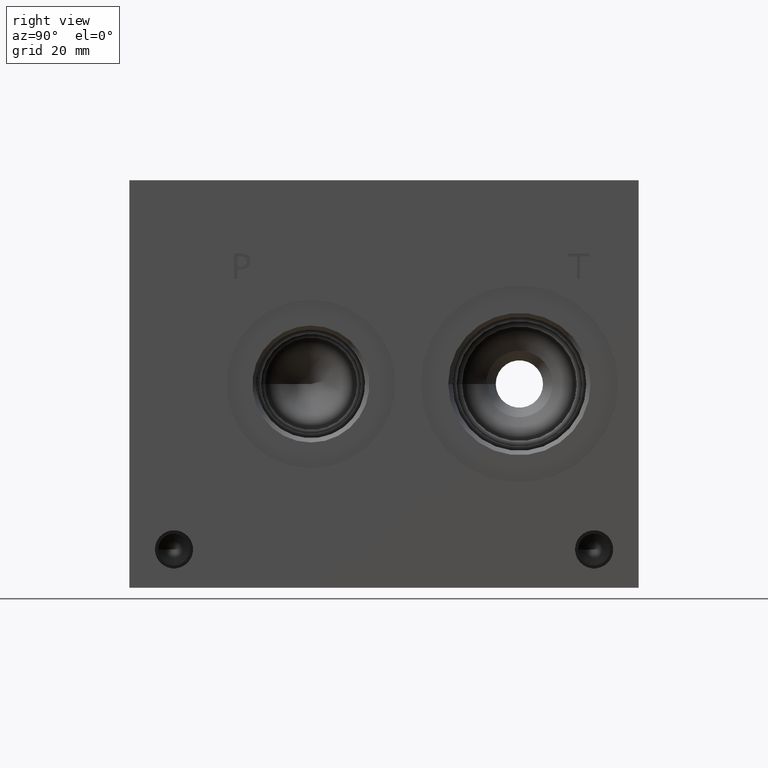
[diagram: clean part render]
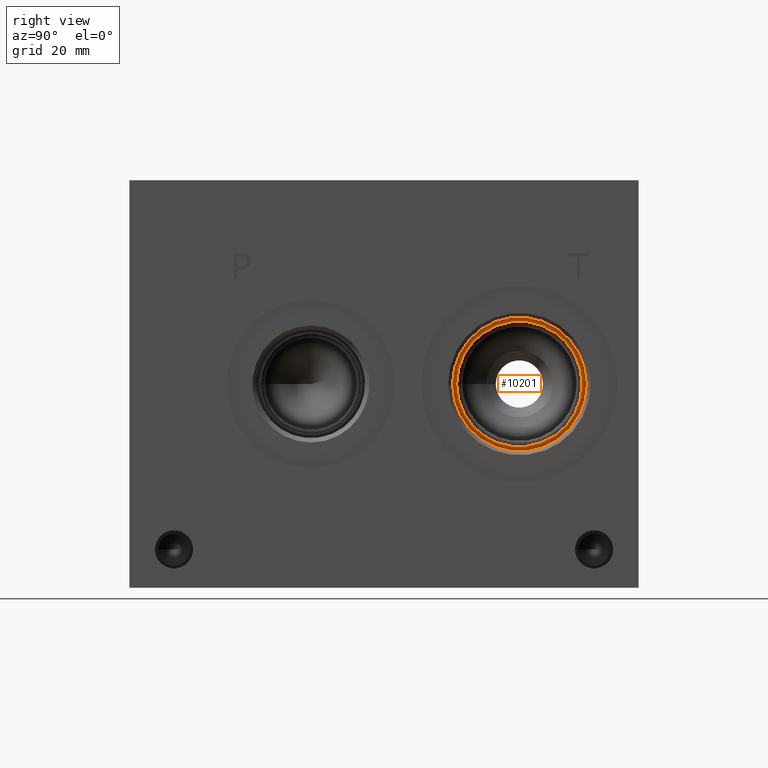
[diagram: same view with one face highlighted and labeled with its STEP entity id]
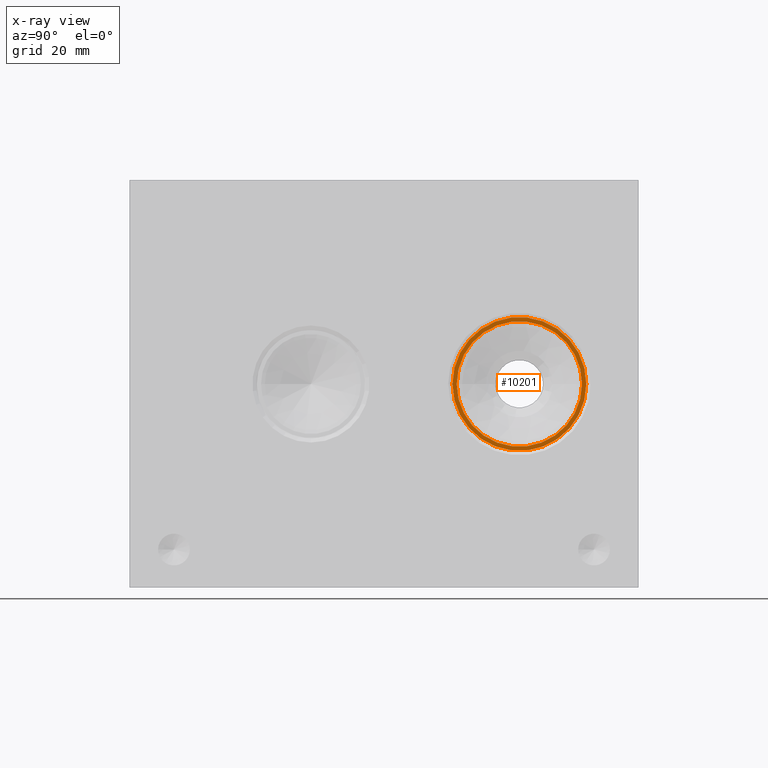
[diagram: x-ray of the same camera — body ghosted, the highlighted face saturated]
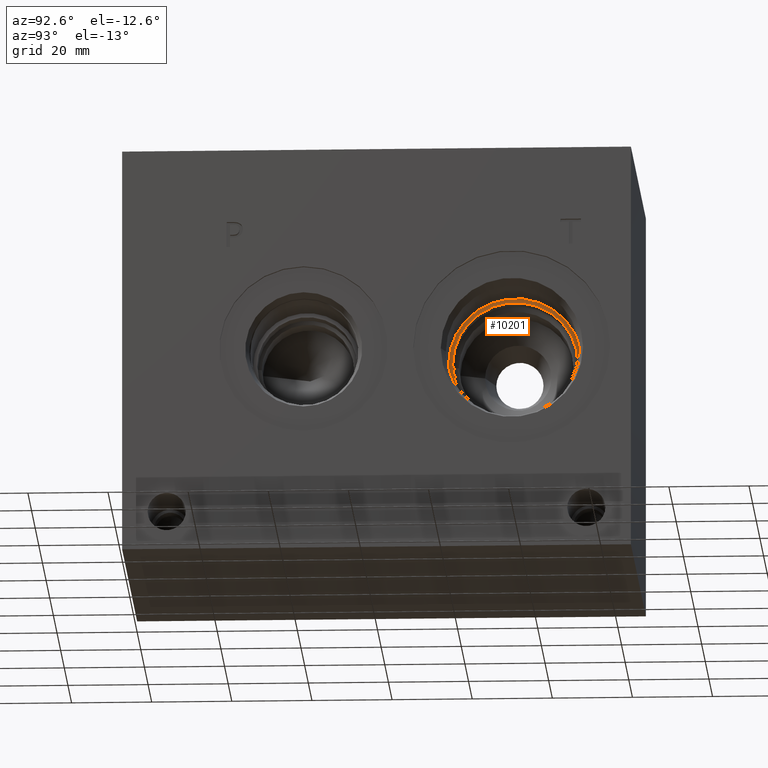
[diagram: same view with one face highlighted and labeled with its STEP entity id]
A machine part, right view. The second image highlights one B-rep face of the part: STEP entity #10201.
The next image is the same camera in x-ray: the body ghosted, the highlighted face saturated — about 0% of this face is hidden behind the body in this view.
A second angle (auxiliary view) of the same face is appended — the face is thin or edge-on in the first view.
In plain terms, the highlighted planar face has unit normal (1, 0, 0).
Its self-contained STEP definition (entity closure, byte-faithful):
#139=CIRCLE('',#10653,16.6751);
#140=CIRCLE('',#10654,16.6751);
#141=CIRCLE('',#10655,15.6337);
#344=FACE_BOUND('',#1753,.T.);
#1175=FACE_OUTER_BOUND('',#1752,.T.);
#1752=EDGE_LOOP('',(#8539,#8540));
#1753=EDGE_LOOP('',(#8541));
#4630=VERTEX_POINT('',#17133);
#4631=VERTEX_POINT('',#17134);
#4632=VERTEX_POINT('',#17137);
#5983=EDGE_CURVE('',#4630,#4631,#139,.T.);
#5984=EDGE_CURVE('',#4631,#4630,#140,.T.);
#5985=EDGE_CURVE('',#4632,#4632,#141,.T.);
#8539=ORIENTED_EDGE('',*,*,#5983,.T.);
#8540=ORIENTED_EDGE('',*,*,#5984,.T.);
#8541=ORIENTED_EDGE('',*,*,#5985,.F.);
#9351=PLANE('',#10652);
#10201=ADVANCED_FACE('',(#1175,#344),#9351,.T.);
#10652=AXIS2_PLACEMENT_3D('',#17132,#12473,#12474);
#10653=AXIS2_PLACEMENT_3D('',#17135,#12475,#12476);
#10654=AXIS2_PLACEMENT_3D('',#17136,#12477,#12478);
#10655=AXIS2_PLACEMENT_3D('',#17138,#12479,#12480);
#12473=DIRECTION('center_axis',(1.,0.,0.));
#12474=DIRECTION('ref_axis',(0.,1.,0.));
#12475=DIRECTION('center_axis',(1.,0.,0.));
#12476=DIRECTION('ref_axis',(0.,1.,0.));
#12477=DIRECTION('center_axis',(1.,0.,0.));
#12478=DIRECTION('ref_axis',(0.,1.,0.));
#12479=DIRECTION('center_axis',(1.,0.,0.));
#12480=DIRECTION('ref_axis',(0.,1.,0.));
#17132=CARTESIAN_POINT('Origin',(62.7126,97.2566,50.8));
#17133=CARTESIAN_POINT('',(62.7126,113.9317,50.8));
#17134=CARTESIAN_POINT('',(62.7126,80.5815,50.8));
#17135=CARTESIAN_POINT('Origin',(62.7126,97.2566,50.8));
#17136=CARTESIAN_POINT('Origin',(62.7126,97.2566,50.8));
#17137=CARTESIAN_POINT('',(62.7126,81.6229,50.8));
#17138=CARTESIAN_POINT('Origin',(62.7126,97.2566,50.8));